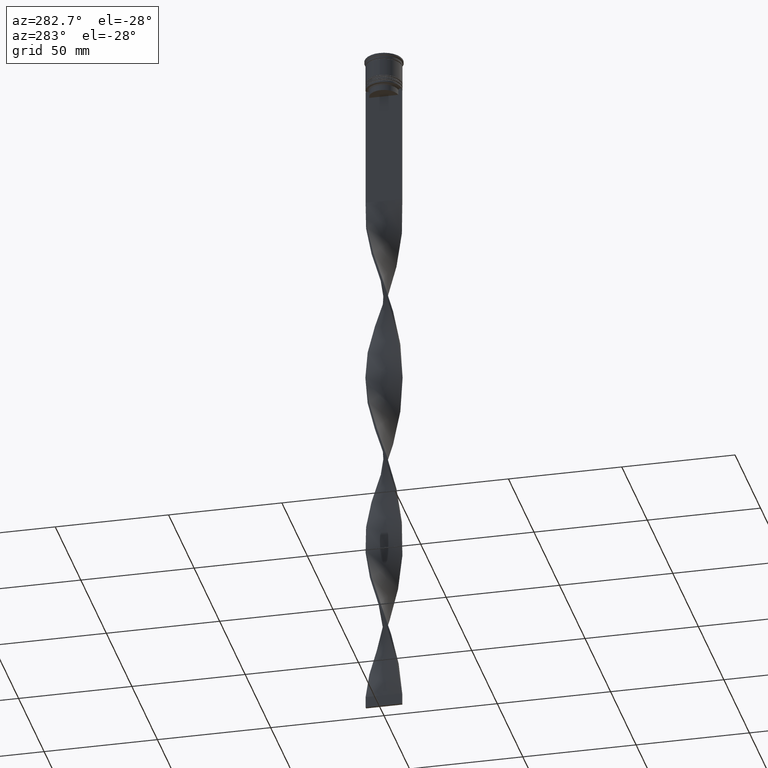
[diagram: clean part render]
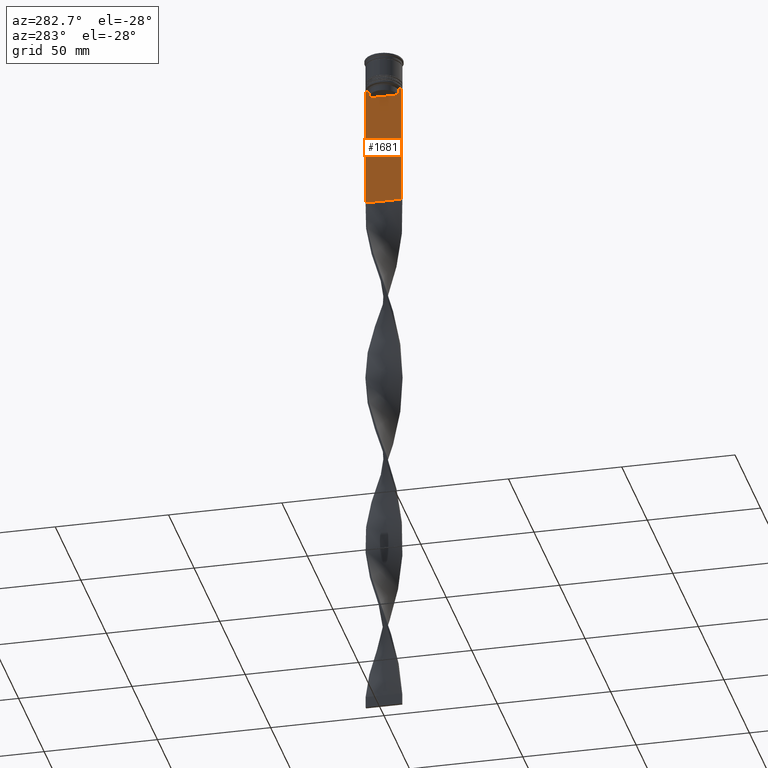
[diagram: same view with one face highlighted and labeled with its STEP entity id]
A machine part, auxiliary view. The second image highlights one B-rep face of the part: STEP entity #1681.
In plain terms, the highlighted planar face has unit normal (-1, 0, 0).
Its self-contained STEP definition (entity closure, byte-faithful):
#2 = LINE ( 'NONE', #2216, #329 ) ;
#5 = EDGE_CURVE ( 'NONE', #2131, #4109, #1916, .T. ) ;
#9 = CARTESIAN_POINT ( 'NONE',  ( -0.4999999999999998890, -8.000000000000003553, -14.00000000000000178 ) ) ;
#34 = CARTESIAN_POINT ( 'NONE',  ( -0.4999999999999998890, -8.000000000000003553, 2.031219541881394530 ) ) ;
#90 = VERTEX_POINT ( 'NONE', #3986 ) ;
#92 = CARTESIAN_POINT ( 'NONE',  ( -0.4999999999999998890, -6.380438856379708312, -17.00000000000000000 ) ) ;
#121 = VECTOR ( 'NONE', #3445, 1000.000000000000000 ) ;
#137 = EDGE_CURVE ( 'NONE', #4109, #3671, #2983, .T. ) ;
#175 = CARTESIAN_POINT ( 'NONE',  ( -0.4999999999999998890, -8.000000000000003553, -14.00000000000000178 ) ) ;
#244 = ORIENTED_EDGE ( 'NONE', *, *, #3196, .F. ) ;
#249 = CARTESIAN_POINT ( 'NONE',  ( -0.4999999999999998890, 7.999999999999996447, 2.031219541881394530 ) ) ;
#253 = CARTESIAN_POINT ( 'NONE',  ( -0.4999999999999998890, -8.000000000000003553, -68.00000000000000000 ) ) ;
#273 = ORIENTED_EDGE ( 'NONE', *, *, #1221, .F. ) ;
#285 = VERTEX_POINT ( 'NONE', #492 ) ;
#291 = EDGE_CURVE ( 'NONE', #2472, #90, #1761, .T. ) ;
#315 = ORIENTED_EDGE ( 'NONE', *, *, #1804, .F. ) ;
#316 = LINE ( 'NONE', #253, #4107 ) ;
#317 = VECTOR ( 'NONE', #3019, 1000.000000000000000 ) ;
#329 = VECTOR ( 'NONE', #1659, 1000.000000000000000 ) ;
#393 = ORIENTED_EDGE ( 'NONE', *, *, #291, .F. ) ;
#492 = CARTESIAN_POINT ( 'NONE',  ( -0.4999999999999998890, -6.881860213634098500, -14.00000000000000178 ) ) ;
#585 = ORIENTED_EDGE ( 'NONE', *, *, #685, .F. ) ;
#671 = LINE ( 'NONE', #3864, #3106 ) ;
#685 = EDGE_CURVE ( 'NONE', #285, #2595, #4058, .T. ) ;
#739 = LINE ( 'NONE', #777, #1235 ) ;
#777 = CARTESIAN_POINT ( 'NONE',  ( -0.4999999999999998890, -6.380438856379708312, 0.000000000000000000 ) ) ;
#833 = VECTOR ( 'NONE', #1246, 1000.000000000000000 ) ;
#884 = ORIENTED_EDGE ( 'NONE', *, *, #5, .F. ) ;
#885 = DIRECTION ( 'NONE',  ( 0.000000000000000000, 1.000000000000000000, 0.000000000000000000 ) ) ;
#893 = CARTESIAN_POINT ( 'NONE',  ( -0.4999999999999998890, 6.714736947114692711, -14.16668390704818847 ) ) ;
#914 = VERTEX_POINT ( 'NONE', #1197 ) ;
#928 = EDGE_CURVE ( 'NONE', #2131, #2819, #3082, .T. ) ;
#939 = ORIENTED_EDGE ( 'NONE', *, *, #3683, .F. ) ;
#1039 = CARTESIAN_POINT ( 'NONE',  ( -0.4999999999999998890, -8.000000000000003553, -14.00000000000000178 ) ) ;
#1197 = CARTESIAN_POINT ( 'NONE',  ( -0.4999999999999998890, 6.380438856379708312, -14.50000000000000000 ) ) ;
#1221 = EDGE_CURVE ( 'NONE', #3550, #1762, #739, .T. ) ;
#1235 = VECTOR ( 'NONE', #3253, 1000.000000000000000 ) ;
#1246 = DIRECTION ( 'NONE',  ( 0.000000000000000000, -1.000000000000000000, 0.000000000000000000 ) ) ;
#1297 = PLANE ( 'NONE',  #2705 ) ;
#1477 = CARTESIAN_POINT ( 'NONE',  ( -0.4999999999999998890, -8.000000000000003553, 2.031219541881394530 ) ) ;
#1497 = B_SPLINE_CURVE_WITH_KNOTS ( 'NONE', 3,
 ( #3815, #893, #4101, #2847 ),
 .UNSPECIFIED., .F., .F.,
 ( 4, 4 ),
 ( 0.01172465562756038263, 0.01243276816391822651 ),
 .UNSPECIFIED. ) ;
#1554 = ORIENTED_EDGE ( 'NONE', *, *, #928, .T. ) ;
#1597 = CARTESIAN_POINT ( 'NONE',  ( -0.4999999999999998890, -6.380438856379708312, -14.50000000000000000 ) ) ;
#1605 = CARTESIAN_POINT ( 'NONE',  ( -0.4999999999999998890, -6.547597841511246131, -14.33335192438652328 ) ) ;
#1649 = B_SPLINE_CURVE_WITH_KNOTS ( 'NONE', 3,
 ( #2212, #1605, #3547, #4110 ),
 .UNSPECIFIED., .F., .F.,
 ( 4, 4 ),
 ( 0.02996184199614749730, 0.03067452609193703841 ),
 .UNSPECIFIED. ) ;
#1659 = DIRECTION ( 'NONE',  ( 0.000000000000000000, -1.000000000000000000, 0.000000000000000000 ) ) ;
#1666 = DIRECTION ( 'NONE',  ( 0.000000000000000000, 0.000000000000000000, -1.000000000000000000 ) ) ;
#1678 = EDGE_LOOP ( 'NONE', ( #315, #2325, #884, #1554, #2566, #393, #939, #585, #244, #273, #1893, #3531 ) ) ;
#1681 = ADVANCED_FACE ( 'NONE', ( #3081 ), #1297, .T. ) ;
#1761 = LINE ( 'NONE', #1477, #317 ) ;
#1762 = VERTEX_POINT ( 'NONE', #1597 ) ;
#1799 = VERTEX_POINT ( 'NONE', #2555 ) ;
#1804 = EDGE_CURVE ( 'NONE', #3671, #914, #1497, .T. ) ;
#1893 = ORIENTED_EDGE ( 'NONE', *, *, #2668, .F. ) ;
#1898 = VECTOR ( 'NONE', #3354, 1000.000000000000000 ) ;
#1916 = LINE ( 'NONE', #2518, #833 ) ;
#2088 = CARTESIAN_POINT ( 'NONE',  ( -0.4999999999999998890, 7.999999999999996447, -68.00000000000000000 ) ) ;
#2131 = VERTEX_POINT ( 'NONE', #3005 ) ;
#2212 = CARTESIAN_POINT ( 'NONE',  ( -0.4999999999999998890, -6.380438856379708312, -14.50000000000000000 ) ) ;
#2216 = CARTESIAN_POINT ( 'NONE',  ( -0.4999999999999998890, 6.399999999999999467, -17.00000000000000000 ) ) ;
#2230 = DIRECTION ( 'NONE',  ( -1.000000000000000000, 0.000000000000000000, 0.000000000000000000 ) ) ;
#2295 = CARTESIAN_POINT ( 'NONE',  ( -0.4999999999999998890, 7.884161337770806632, -14.00000000000000178 ) ) ;
#2325 = ORIENTED_EDGE ( 'NONE', *, *, #137, .F. ) ;
#2472 = VERTEX_POINT ( 'NONE', #9 ) ;
#2516 = EDGE_CURVE ( 'NONE', #90, #2819, #316, .T. ) ;
#2518 = CARTESIAN_POINT ( 'NONE',  ( -0.4999999999999998890, -8.000000000000003553, -14.00000000000000178 ) ) ;
#2555 = CARTESIAN_POINT ( 'NONE',  ( -0.4999999999999998890, 6.380438856379708312, -17.00000000000000000 ) ) ;
#2566 = ORIENTED_EDGE ( 'NONE', *, *, #2516, .F. ) ;
#2568 = DIRECTION ( 'NONE',  ( 0.000000000000000000, 0.000000000000000000, 1.000000000000000000 ) ) ;
#2595 = VERTEX_POINT ( 'NONE', #3510 ) ;
#2668 = EDGE_CURVE ( 'NONE', #1799, #3550, #2, .T. ) ;
#2696 = VECTOR ( 'NONE', #3858, 1000.000000000000000 ) ;
#2705 = AXIS2_PLACEMENT_3D ( 'NONE', #34, #2230, #2568 ) ;
#2731 = CARTESIAN_POINT ( 'NONE',  ( -0.4999999999999998890, -8.000000000000003553, -14.00000000000000178 ) ) ;
#2819 = VERTEX_POINT ( 'NONE', #2088 ) ;
#2847 = CARTESIAN_POINT ( 'NONE',  ( -0.4999999999999998890, 6.380438856379708312, -14.50000000000000000 ) ) ;
#2983 = LINE ( 'NONE', #2731, #1898 ) ;
#3005 = CARTESIAN_POINT ( 'NONE',  ( -0.4999999999999998890, 7.999999999999996447, -14.00000000000000178 ) ) ;
#3019 = DIRECTION ( 'NONE',  ( 0.000000000000000000, 0.000000000000000000, -1.000000000000000000 ) ) ;
#3081 = FACE_OUTER_BOUND ( 'NONE', #1678, .T. ) ;
#3082 = LINE ( 'NONE', #249, #121 ) ;
#3106 = VECTOR ( 'NONE', #1666, 1000.000000000000000 ) ;
#3196 = EDGE_CURVE ( 'NONE', #1762, #285, #1649, .T. ) ;
#3253 = DIRECTION ( 'NONE',  ( -0.000000000000000000, -0.000000000000000000, 1.000000000000000000 ) ) ;
#3354 = DIRECTION ( 'NONE',  ( 0.000000000000000000, -1.000000000000000000, 0.000000000000000000 ) ) ;
#3361 = LINE ( 'NONE', #175, #3442 ) ;
#3442 = VECTOR ( 'NONE', #3993, 1000.000000000000000 ) ;
#3445 = DIRECTION ( 'NONE',  ( 0.000000000000000000, 0.000000000000000000, -1.000000000000000000 ) ) ;
#3510 = CARTESIAN_POINT ( 'NONE',  ( -0.4999999999999998890, -7.884161337770806632, -14.00000000000000178 ) ) ;
#3531 = ORIENTED_EDGE ( 'NONE', *, *, #3611, .F. ) ;
#3547 = CARTESIAN_POINT ( 'NONE',  ( -0.4999999999999998890, -6.714736947305992132, -14.16668390685738999 ) ) ;
#3550 = VERTEX_POINT ( 'NONE', #92 ) ;
#3611 = EDGE_CURVE ( 'NONE', #914, #1799, #671, .T. ) ;
#3671 = VERTEX_POINT ( 'NONE', #3836 ) ;
#3683 = EDGE_CURVE ( 'NONE', #2595, #2472, #3361, .T. ) ;
#3815 = CARTESIAN_POINT ( 'NONE',  ( -0.4999999999999998890, 6.881860213634098500, -14.00000000000000178 ) ) ;
#3836 = CARTESIAN_POINT ( 'NONE',  ( -0.4999999999999998890, 6.881860213634098500, -14.00000000000000178 ) ) ;
#3858 = DIRECTION ( 'NONE',  ( 0.000000000000000000, -1.000000000000000000, 0.000000000000000000 ) ) ;
#3864 = CARTESIAN_POINT ( 'NONE',  ( -0.4999999999999998890, 6.380438856379708312, 0.000000000000000000 ) ) ;
#3986 = CARTESIAN_POINT ( 'NONE',  ( -0.4999999999999998890, -8.000000000000003553, -68.00000000000000000 ) ) ;
#3993 = DIRECTION ( 'NONE',  ( 0.000000000000000000, -1.000000000000000000, 0.000000000000000000 ) ) ;
#4058 = LINE ( 'NONE', #1039, #2696 ) ;
#4101 = CARTESIAN_POINT ( 'NONE',  ( -0.4999999999999998890, 6.547597841304911626, -14.33335192459222718 ) ) ;
#4107 = VECTOR ( 'NONE', #885, 1000.000000000000000 ) ;
#4109 = VERTEX_POINT ( 'NONE', #2295 ) ;
#4110 = CARTESIAN_POINT ( 'NONE',  ( -0.4999999999999998890, -6.881860213634098500, -14.00000000000000178 ) ) ;